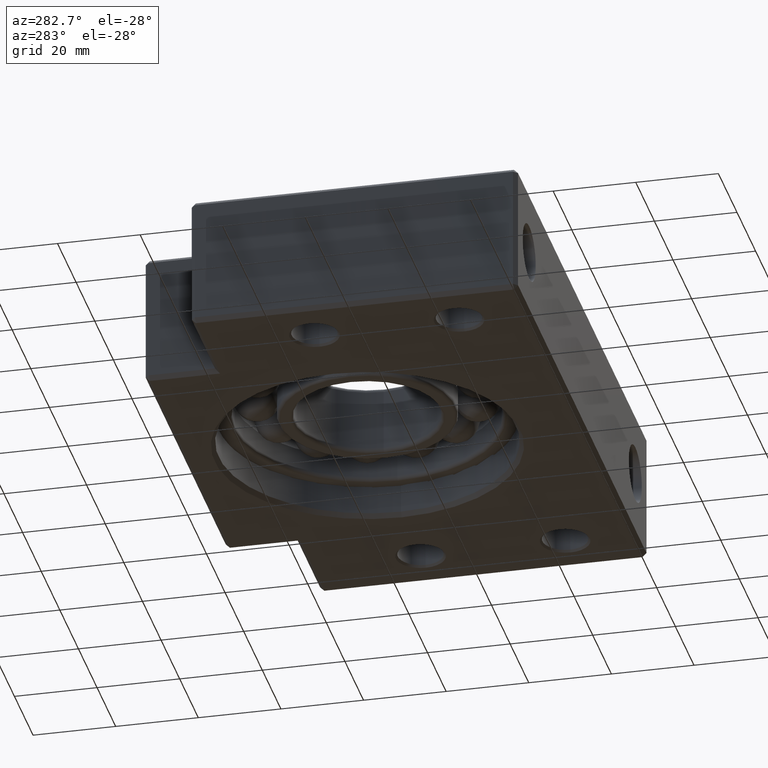
[diagram: clean part render]
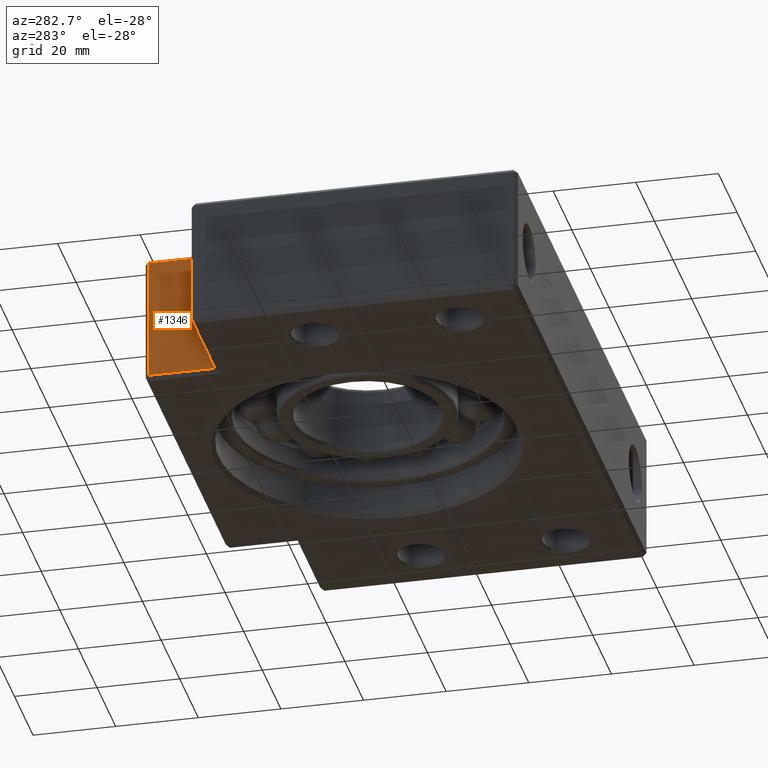
[diagram: same view with one face highlighted and labeled with its STEP entity id]
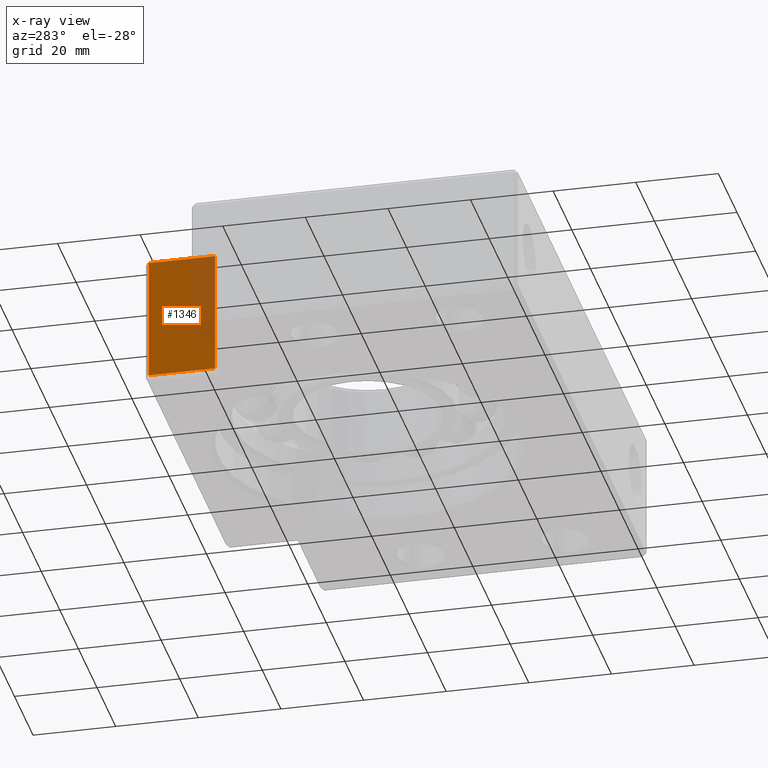
[diagram: x-ray of the same camera — body ghosted, the highlighted face saturated]
A machine part, auxiliary view. The second image highlights one B-rep face of the part: STEP entity #1346.
The next image is the same camera in x-ray: the body ghosted, the highlighted face saturated — about 24% of this face is hidden behind the body in this view.
In plain terms, the highlighted planar face has unit normal (1, 0, -0).
Its self-contained STEP definition (entity closure, byte-faithful):
#1222 = VERTEX_POINT ( 'NONE', #3649 ) ;
#1224 = ORIENTED_EDGE ( 'NONE', *, *, #1226, .T. ) ;
#1226 = EDGE_CURVE ( 'NONE', #1222, #1349, #3648, .T. ) ;
#1337 = ORIENTED_EDGE ( 'NONE', *, *, #1342, .T. ) ;
#1338 = VERTEX_POINT ( 'NONE', #3902 ) ;
#1339 = VERTEX_POINT ( 'NONE', #3901 ) ;
#1340 = EDGE_CURVE ( 'NONE', #1222, #1338, #3347, .T. ) ;
#1341 = ORIENTED_EDGE ( 'NONE', *, *, #1340, .F. ) ;
#1342 = EDGE_CURVE ( 'NONE', #1339, #1338, #3963, .T. ) ;
#1345 = ORIENTED_EDGE ( 'NONE', *, *, #1350, .T. ) ;
#1346 = ADVANCED_FACE ( 'NONE', ( #3955 ), #3954, .F. ) ;
#1348 = EDGE_LOOP ( 'NONE', ( #1345, #1337, #1341, #1224 ) ) ;
#1349 = VERTEX_POINT ( 'NONE', #3948 ) ;
#1350 = EDGE_CURVE ( 'NONE', #1349, #1339, #3947, .T. ) ;
#3347 = LINE ( 'NONE', #3629, #3635 ) ;
#3628 = DIRECTION ( 'NONE',  ( -0.0000000000000000000, -0.0000000000000000000, -1.000000000000000000 ) ) ;
#3629 = CARTESIAN_POINT ( 'NONE',  ( -43.99999999999999300, 78.99999999999998600, 16.00000000000000000 ) ) ;
#3635 = VECTOR ( 'NONE', #3628, 1000.000000000000000 ) ;
#3645 = DIRECTION ( 'NONE',  ( 0.0000000000000000000, 1.000000000000000000, 0.0000000000000000000 ) ) ;
#3646 = VECTOR ( 'NONE', #3645, 1000.000000000000000 ) ;
#3647 = CARTESIAN_POINT ( 'NONE',  ( -43.99999999999999300, 95.99999999999998600, 14.99999999999998600 ) ) ;
#3648 = LINE ( 'NONE', #3647, #3646 ) ;
#3649 = CARTESIAN_POINT ( 'NONE',  ( -43.99999999999999300, 78.99999999999998600, 14.99999999999998600 ) ) ;
#3901 = CARTESIAN_POINT ( 'NONE',  ( -43.99999999999999300, 94.99999999999997200, -14.99999999999998600 ) ) ;
#3902 = CARTESIAN_POINT ( 'NONE',  ( -43.99999999999999300, 78.99999999999998600, -14.99999999999998600 ) ) ;
#3944 = DIRECTION ( 'NONE',  ( 0.0000000000000000000, 0.0000000000000000000, -1.000000000000000000 ) ) ;
#3945 = VECTOR ( 'NONE', #3944, 1000.000000000000000 ) ;
#3946 = CARTESIAN_POINT ( 'NONE',  ( -43.99999999999999300, 94.99999999999997200, 16.00000000000000000 ) ) ;
#3947 = LINE ( 'NONE', #3946, #3945 ) ;
#3948 = CARTESIAN_POINT ( 'NONE',  ( -43.99999999999999300, 94.99999999999997200, 14.99999999999998600 ) ) ;
#3950 = DIRECTION ( 'NONE',  ( -0.0000000000000000000, 0.0000000000000000000, -1.000000000000000000 ) ) ;
#3951 = DIRECTION ( 'NONE',  ( 1.000000000000000000, 0.0000000000000000000, -0.0000000000000000000 ) ) ;
#3952 = CARTESIAN_POINT ( 'NONE',  ( -43.99999999999999300, 95.99999999999998600, 16.00000000000000000 ) ) ;
#3953 = AXIS2_PLACEMENT_3D ( 'NONE', #3952, #3951, #3950 ) ;
#3954 = PLANE ( 'NONE',  #3953 ) ;
#3955 = FACE_OUTER_BOUND ( 'NONE', #1348, .T. ) ;
#3960 = DIRECTION ( 'NONE',  ( 0.0000000000000000000, -1.000000000000000000, 0.0000000000000000000 ) ) ;
#3961 = VECTOR ( 'NONE', #3960, 1000.000000000000000 ) ;
#3962 = CARTESIAN_POINT ( 'NONE',  ( -43.99999999999999300, 95.99999999999998600, -14.99999999999998600 ) ) ;
#3963 = LINE ( 'NONE', #3962, #3961 ) ;